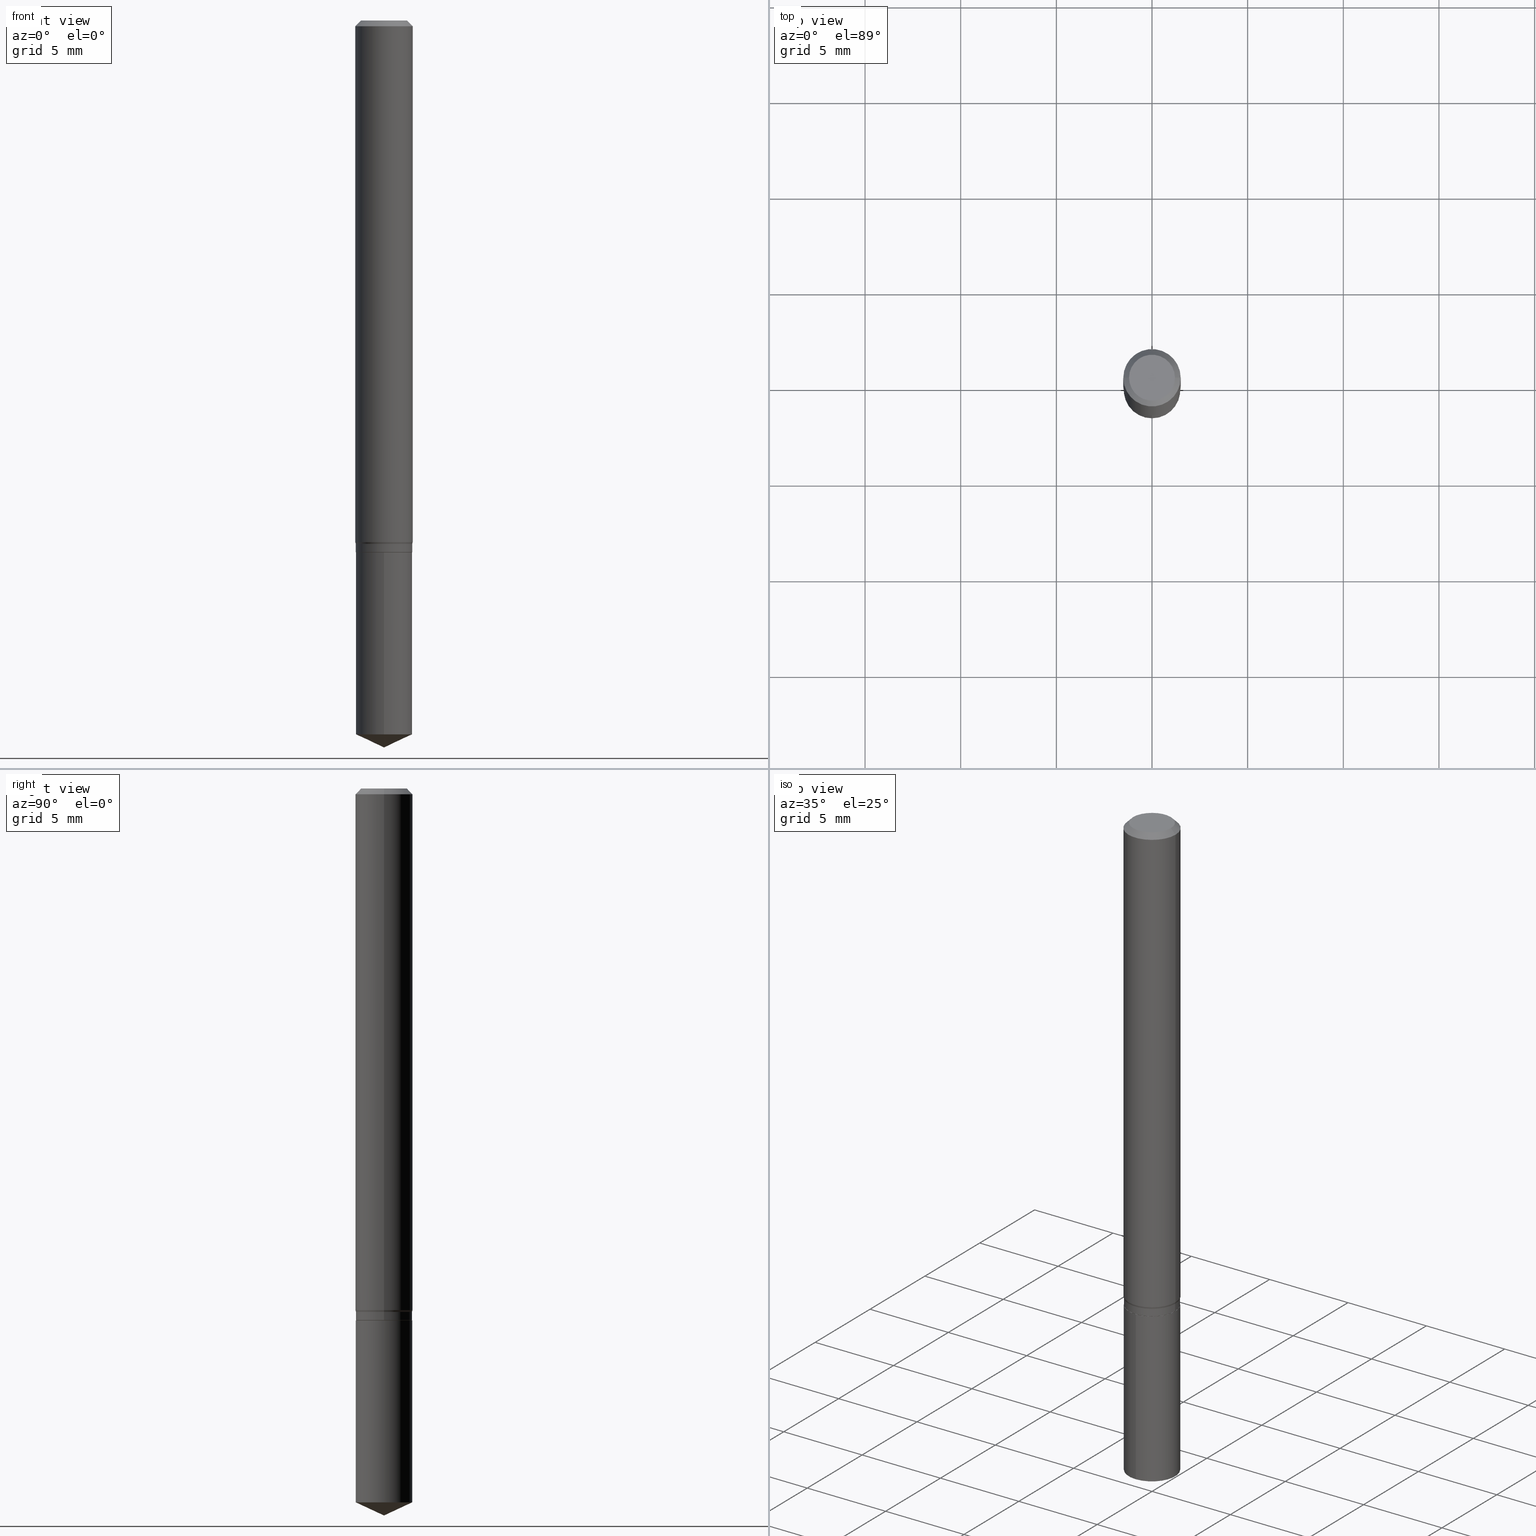
[diagram: canonical four-view strip — front | top / right | iso, engineering-drawing reading convention]
A machine part, canonical four-view strip (front | top / right | iso — engineering-drawing reading convention). The complete STEP part file that produces these views, byte-faithful:
ISO-10303-21;
HEADER;
FILE_DESCRIPTION (( 'STEP AP203' ),
    '1' );
FILE_NAME ('08224.STEP',
    '2024-04-24T13:50:58',
    ( '' ),
    ( '' ),
    'SwSTEP 2.0',
    'SolidWorks 2023',
    '' );
FILE_SCHEMA (( 'CONFIG_CONTROL_DESIGN' ));
ENDSEC;

DATA;
#1 = DIRECTION ( 'NONE',  ( -2.445468806185136597E-29, 3.491481338843145583E-15, 1.000000000000000000 ) ) ;
#2 = CIRCLE ( 'NONE', #252, 0.05754999999999999699 ) ;
#3 =( NAMED_UNIT ( * ) PLANE_ANGLE_UNIT ( ) SI_UNIT ( $, .RADIAN. ) );
#4 = DIRECTION ( 'NONE',  ( -6.982962677686265922E-15, -1.000000000000000000, 4.706025828879006993E-15 ) ) ;
#5 = FACE_OUTER_BOUND ( 'NONE', #255, .T. ) ;
#6 = LINE ( 'NONE', #420, #355 ) ;
#7 = CARTESIAN_POINT ( 'NONE',  ( 8.265746106709734507E-48, -1.180129479067563789E-33, -3.380025165646692144E-19 ) ) ;
#8 = ORIENTED_EDGE ( 'NONE', *, *, #27, .F. ) ;
#9 = CARTESIAN_POINT ( 'NONE',  ( -4.053609834396517801E-16, -0.05805000000000513222, -1.469030840444102592 ) ) ;
#10 = ADVANCED_BREP_SHAPE_REPRESENTATION ( '08224', ( #384, #238, #113 ), #149 ) ;
#11 = CARTESIAN_POINT ( 'NONE',  ( 2.676565608369631794E-29, -3.821426325363822773E-15, -1.094499999999999806 ) ) ;
#12 = AXIS2_PLACEMENT_3D ( 'NONE', #11, #317, #120 ) ;
#13 = CONICAL_SURFACE ( 'NONE', #366, 0.05805000000000000437, 0.2617993877991441898 ) ;
#14 = DIRECTION ( 'NONE',  ( -2.445468806185136877E-29, 3.491481338843145188E-15, 1.000000000000000000 ) ) ;
#15 = ORIENTED_EDGE ( 'NONE', *, *, #481, .T. ) ;
#16 = CARTESIAN_POINT ( 'NONE',  ( 0.05904999999999999832, -4.535783407291118600E-16, -0.01181000000000006350 ) ) ;
#17 = EDGE_CURVE ( 'NONE', #68, #265, #409, .T. ) ;
#18 = DIRECTION ( 'NONE',  ( 0.000000000000000000, 0.000000000000000000, 1.000000000000000000 ) ) ;
#19 = DIRECTION ( 'NONE',  ( -2.445468806185136597E-29, 3.491481338843145583E-15, 1.000000000000000000 ) ) ;
#20 = ORIENTED_EDGE ( 'NONE', *, *, #320, .T. ) ;
#21 = VECTOR ( 'NONE', #377, 39.37007874015748143 ) ;
#22 = ORIENTED_EDGE ( 'NONE', *, *, #134, .T. ) ;
#23 = AXIS2_PLACEMENT_3D ( 'NONE', #273, #452, #166 ) ;
#24 = CARTESIAN_POINT ( 'NONE',  ( -0.05805000000000000437, -3.348204491959213992E-15, -1.077099999999999946 ) ) ;
#25 = CC_DESIGN_APPROVAL ( #382, ( #447 ) ) ;
#26 = FACE_OUTER_BOUND ( 'NONE', #398, .T. ) ;
#27 = EDGE_CURVE ( 'NONE', #438, #192, #82, .T. ) ;
#28 = ORIENTED_EDGE ( 'NONE', *, *, #228, .T. ) ;
#29 = SHAPE_DEFINITION_REPRESENTATION ( #258, #10 ) ;
#30 = ORIENTED_EDGE ( 'NONE', *, *, #17, .T. ) ;
#31 = VERTEX_POINT ( 'NONE', #186 ) ;
#32 = EDGE_CURVE ( 'NONE', #363, #370, #137, .T. ) ;
#33 = DIRECTION ( 'NONE',  ( 1.000000000000000000, -6.982962677686262766E-15, 0.000000000000000000 ) ) ;
#34 = CIRCLE ( 'NONE', #345, 0.04724000000000000421 ) ;
#35 = EDGE_CURVE ( 'NONE', #438, #220, #157, .T. ) ;
#36 = CALENDAR_DATE ( 2024, 24, 4 ) ;
#37 = CYLINDRICAL_SURFACE ( 'NONE', #446, 0.05905000000000006771 ) ;
#38 = ORIENTED_EDGE ( 'NONE', *, *, #106, .F. ) ;
#39 = APPROVAL_DATE_TIME ( #376, #309 ) ;
#40 = DIRECTION ( 'NONE',  ( 1.000000000000000000, -6.982962677686266711E-15, 0.000000000000000000 ) ) ;
#41 = VECTOR ( 'NONE', #208, 39.37007874015748854 ) ;
#42 = CARTESIAN_POINT ( 'NONE',  ( -0.04724000000000000421, 3.504923541997677355E-16, -3.380025165670481712E-19 ) ) ;
#43 = ADVANCED_FACE ( 'NONE', ( #419 ), #344, .T. ) ;
#44 = DIRECTION ( 'NONE',  ( -2.445358326776455510E-29, 3.491639551644474585E-15, 1.000000000000000000 ) ) ;
#45 = ORIENTED_EDGE ( 'NONE', *, *, #262, .F. ) ;
#46 = AXIS2_PLACEMENT_3D ( 'NONE', #174, #180, #392 ) ;
#47 = ADVANCED_FACE ( 'NONE', ( #5 ), #198, .T. ) ;
#48 = CIRCLE ( 'NONE', #477, 0.05805000000000000437 ) ;
#49 = FACE_OUTER_BOUND ( 'NONE', #369, .T. ) ;
#50 = APPLICATION_PROTOCOL_DEFINITION ( 'international standard', 'config_control_design', 1994, #222 ) ;
#51 = DIRECTION ( 'NONE',  ( -2.445468806185136877E-29, 3.491481338843145188E-15, 1.000000000000000000 ) ) ;
#52 = CC_DESIGN_PERSON_AND_ORGANIZATION_ASSIGNMENT ( #322, #424, ( #194 ) ) ;
#53 = FACE_OUTER_BOUND ( 'NONE', #365, .T. ) ;
#54 = DIRECTION ( 'NONE',  ( 1.000000000000000000, -6.982962677686265133E-15, 0.000000000000000000 ) ) ;
#55 = DIRECTION ( 'NONE',  ( 2.445358326776454949E-29, -3.491639551644474585E-15, -1.000000000000000000 ) ) ;
#56 = CARTESIAN_POINT ( 'NONE',  ( 3.592427717684202887E-29, -5.129153021169098548E-15, -1.469030840444102815 ) ) ;
#57 = APPROVAL_ROLE ( '' ) ;
#58 = CLOSED_SHELL ( 'NONE', ( #218, #432, #484, #429, #47, #83, #451, #292, #43, #347, #474, #304 ) ) ;
#59 = CIRCLE ( 'NONE', #240, 0.05754999999999999699 ) ;
#60 = LINE ( 'NONE', #167, #267 ) ;
#61 = ORIENTED_EDGE ( 'NONE', *, *, #32, .F. ) ;
#62 = EDGE_CURVE ( 'NONE', #81, #68, #86, .T. ) ;
#63 = PERSON_AND_ORGANIZATION ( #125, #338 ) ;
#64 = DIRECTION ( 'NONE',  ( 6.982962677686265922E-15, 1.000000000000000000, -3.491639551644474585E-15 ) ) ;
#65 = ORIENTED_EDGE ( 'NONE', *, *, #417, .T. ) ;
#66 = EDGE_CURVE ( 'NONE', #455, #31, #223, .T. ) ;
#67 = DIRECTION ( 'NONE',  ( -2.445358326776455510E-29, 3.491639551644474585E-15, 1.000000000000000000 ) ) ;
#68 = VERTEX_POINT ( 'NONE', #351 ) ;
#69 = EDGE_LOOP ( 'NONE', ( #226, #15, #61, #433 ) ) ;
#70 = CC_DESIGN_APPROVAL ( #233, ( #194 ) ) ;
#71 = VERTEX_POINT ( 'NONE', #453 ) ;
#72 = DIRECTION ( 'NONE',  ( -2.445468806185136597E-29, 3.491481338843145583E-15, 1.000000000000000000 ) ) ;
#73 = EDGE_LOOP ( 'NONE', ( #151, #437, #294, #328 ) ) ;
#74 = CYLINDRICAL_SURFACE ( 'NONE', #469, 0.05905000000000006771 ) ;
#75 = SECURITY_CLASSIFICATION_LEVEL ( 'unclassified' ) ;
#76 = ORIENTED_EDGE ( 'NONE', *, *, #342, .T. ) ;
#77 = DIRECTION ( 'NONE',  ( -2.445468806185136597E-29, 3.491481338843145583E-15, 1.000000000000000000 ) ) ;
#78 = VERTEX_POINT ( 'NONE', #42 ) ;
#79 = VECTOR ( 'NONE', #340, 39.37007874015748143 ) ;
#80 = CC_DESIGN_APPROVAL ( #309, ( #160 ) ) ;
#81 = VERTEX_POINT ( 'NONE', #346 ) ;
#82 = LINE ( 'NONE', #374, #21 ) ;
#83 = ADVANCED_FACE ( 'NONE', ( #126 ), #276, .T. ) ;
#84 = VECTOR ( 'NONE', #319, 39.37007874015748854 ) ;
#85 = EDGE_CURVE ( 'NONE', #31, #455, #239, .T. ) ;
#86 = LINE ( 'NONE', #158, #251 ) ;
#87 = LENGTH_MEASURE_WITH_UNIT ( LENGTH_MEASURE( 0.02539999999999999897 ), #449 );
#88 = FACE_OUTER_BOUND ( 'NONE', #313, .T. ) ;
#89 = DIRECTION ( 'NONE',  ( 2.445468806185136597E-29, -3.491481338843145583E-15, -1.000000000000000000 ) ) ;
#90 =( CONVERSION_BASED_UNIT ( 'INCH', #87 ) LENGTH_UNIT ( ) NAMED_UNIT ( #401 ) );
#91 = ADVANCED_FACE ( 'NONE', ( #323 ), #353, .T. ) ;
#92 = AXIS2_PLACEMENT_3D ( 'NONE', #436, #72, #184 ) ;
#93 = CARTESIAN_POINT ( 'NONE',  ( 0.05754999999999999699, -4.223295827464667094E-15, -1.094499999999999806 ) ) ;
#94 = DATE_AND_TIME ( #357, #224 ) ;
#95 = FACE_OUTER_BOUND ( 'NONE', #221, .T. ) ;
#96 = APPROVAL_STATUS ( 'not_yet_approved' ) ;
#97 = CARTESIAN_POINT ( 'NONE',  ( 4.124700581087740328E-16, 0.05804999999999487653, -1.469030840444103037 ) ) ;
#98 = ORIENTED_EDGE ( 'NONE', *, *, #466, .F. ) ;
#99 = CONICAL_SURFACE ( 'NONE', #23, 84.42940631927567097, 1.134464013796322002 ) ;
#100 = CARTESIAN_POINT ( 'NONE',  ( 0.04724000000000000421, -3.852183633974369345E-16, -3.380025165621689721E-19 ) ) ;
#101 = DIRECTION ( 'NONE',  ( 1.000000000000000000, -6.982962677686265922E-15, 4.876176775795935793E-29 ) ) ;
#102 = FACE_OUTER_BOUND ( 'NONE', #69, .T. ) ;
#103 = EDGE_LOOP ( 'NONE', ( #98, #30, #289, #45 ) ) ;
#104 = ORIENTED_EDGE ( 'NONE', *, *, #417, .F. ) ;
#105 = CARTESIAN_POINT ( 'NONE',  ( 2.676565608369631794E-29, -3.821426325363822773E-15, -1.094499999999999806 ) ) ;
#106 = EDGE_CURVE ( 'NONE', #192, #455, #6, .T. ) ;
#107 = ORIENTED_EDGE ( 'NONE', *, *, #445, .F. ) ;
#108 = AXIS2_PLACEMENT_3D ( 'NONE', #354, #397, #140 ) ;
#109 = CARTESIAN_POINT ( 'NONE',  ( 0.05805000000000000437, -4.166035533507640200E-15, -1.077099999999999946 ) ) ;
#110 = FACE_OUTER_BOUND ( 'NONE', #471, .T. ) ;
#111 = DIRECTION ( 'NONE',  ( -2.445468806185136597E-29, 3.491481338843145583E-15, 1.000000000000000000 ) ) ;
#112 = DIRECTION ( 'NONE',  ( -2.445468806185136597E-29, 3.491481338843145583E-15, 1.000000000000000000 ) ) ;
#113 = AXIS2_PLACEMENT_3D ( 'NONE', #461, #18, #178 ) ;
#114 = EDGE_CURVE ( 'NONE', #182, #81, #209, .T. ) ;
#115 = EDGE_CURVE ( 'NONE', #183, #363, #358, .T. ) ;
#116 = DIRECTION ( 'NONE',  ( -6.982962677686265922E-15, -1.000000000000000000, 2.353012914439503496E-15 ) ) ;
#117 = LOCAL_TIME ( 9, 50, 58.00000000000000000, #130 ) ;
#118 = EDGE_CURVE ( 'NONE', #265, #71, #318, .T. ) ;
#119 = PLANE ( 'NONE',  #148 ) ;
#120 = DIRECTION ( 'NONE',  ( -6.982962677686265922E-15, -1.000000000000000000, 2.353012914439503496E-15 ) ) ;
#121 = ORIENTED_EDGE ( 'NONE', *, *, #134, .F. ) ;
#122 = DIRECTION ( 'NONE',  ( 1.000000000000000000, -6.982962677686266711E-15, 4.876185090822587894E-29 ) ) ;
#123 = CARTESIAN_POINT ( 'NONE',  ( -0.05904999999999999832, -1.474863793998382890E-15, -0.01181000000000006350 ) ) ;
#124 = DATE_AND_TIME ( #253, #117 ) ;
#125 = PERSON ( 'UNSPECIFIED', 'UNSPECIFIED', 'UNSPECIFIED', ('UNSPECIFIED'), ('UNSPECIFIED'), ('UNSPECIFIED') ) ;
#126 = FACE_OUTER_BOUND ( 'NONE', #73, .T. ) ;
#127 = AXIS2_PLACEMENT_3D ( 'NONE', #181, #67, #431 ) ;
#128 = ORIENTED_EDGE ( 'NONE', *, *, #481, .F. ) ;
#129 = CARTESIAN_POINT ( 'NONE',  ( 3.592427717684202887E-29, -5.129153021169098548E-15, -1.469030840444102815 ) ) ;
#130 = COORDINATED_UNIVERSAL_TIME_OFFSET ( 5, 0, .BEHIND. ) ;
#131 = PLANE ( 'NONE',  #246 ) ;
#132 = DIRECTION ( 'NONE',  ( -2.445468806185136597E-29, 3.491481338843145583E-15, 1.000000000000000000 ) ) ;
#133 = APPROVAL_DATE_TIME ( #94, #382 ) ;
#134 = EDGE_CURVE ( 'NONE', #217, #81, #60, .T. ) ;
#135 = ORIENTED_EDGE ( 'NONE', *, *, #320, .F. ) ;
#136 = PERSON_AND_ORGANIZATION_ROLE ( 'design_owner' ) ;
#137 = CIRCLE ( 'NONE', #159, 0.05904999999999999832 ) ;
#138 = VECTOR ( 'NONE', #295, 39.37007874015748143 ) ;
#139 = APPROVAL_PERSON_ORGANIZATION ( #458, #233, #391 ) ;
#140 = DIRECTION ( 'NONE',  ( 1.000000000000000000, -6.982962677686262766E-15, 0.000000000000000000 ) ) ;
#141 = ADVANCED_FACE ( 'NONE', ( #389 ), #131, .F. ) ;
#142 = ORIENTED_EDGE ( 'NONE', *, *, #260, .F. ) ;
#143 = LINE ( 'NONE', #24, #79 ) ;
#144 = APPLICATION_PROTOCOL_DEFINITION ( 'international standard', 'config_control_design', 1994, #333 ) ;
#145 = EDGE_LOOP ( 'NONE', ( #473, #250, #229, #28 ) ) ;
#146 = PERSON_AND_ORGANIZATION_ROLE ( 'classification_officer' ) ;
#147 = CLOSED_SHELL ( 'NONE', ( #179, #378, #441, #91, #141 ) ) ;
#148 = AXIS2_PLACEMENT_3D ( 'NONE', #215, #386, #360 ) ;
#149 =( GEOMETRIC_REPRESENTATION_CONTEXT ( 3 ) GLOBAL_UNCERTAINTY_ASSIGNED_CONTEXT ( ( #331 ) ) GLOBAL_UNIT_ASSIGNED_CONTEXT ( ( #90, #3, #162 ) ) REPRESENTATION_CONTEXT ( 'NONE', 'WORKASPACE' ) );
#150 = EDGE_CURVE ( 'NONE', #220, #31, #283, .T. ) ;
#151 = ORIENTED_EDGE ( 'NONE', *, *, #62, .F. ) ;
#152 = LINE ( 'NONE', #332, #138 ) ;
#153 = EDGE_CURVE ( 'NONE', #78, #183, #34, .T. ) ;
#154 = CARTESIAN_POINT ( 'NONE',  ( 0.05754999999999999699, -4.223295827464667094E-15, -1.094499999999999806 ) ) ;
#155 = VECTOR ( 'NONE', #410, 39.37007874015748143 ) ;
#156 = CONICAL_SURFACE ( 'NONE', #444, 84.42940631927567097, 1.134464013796322002 ) ;
#157 = LINE ( 'NONE', #303, #155 ) ;
#158 = CARTESIAN_POINT ( 'NONE',  ( -0.05805000000000001131, 4.124700581087382383E-16, -2.855441819892973512E-30 ) ) ;
#159 = AXIS2_PLACEMENT_3D ( 'NONE', #191, #111, #40 ) ;
#160 = SECURITY_CLASSIFICATION ( '', '', #75 ) ;
#161 = CARTESIAN_POINT ( 'NONE',  ( 2.676565608369631794E-29, -3.821426325363822773E-15, -1.094499999999999806 ) ) ;
#162 =( NAMED_UNIT ( * ) SI_UNIT ( $, .STERADIAN. ) SOLID_ANGLE_UNIT ( ) );
#163 = FACE_OUTER_BOUND ( 'NONE', #103, .T. ) ;
#164 = DIRECTION ( 'NONE',  ( -0.7071067811865353603, 7.493145998870309984E-15, 0.7071067811865595631 ) ) ;
#165 = DIRECTION ( 'NONE',  ( 1.000000000000000000, -6.982962677686266711E-15, 4.876185090822587894E-29 ) ) ;
#166 = DIRECTION ( 'NONE',  ( -6.982962677686267499E-15, -1.000000000000000000, 3.520397390770398255E-15 ) ) ;
#167 = CARTESIAN_POINT ( 'NONE',  ( -0.05754999999999999699, -3.412508980933885187E-15, -1.094499999999999806 ) ) ;
#168 = CARTESIAN_POINT ( 'NONE',  ( 2.675342873966538993E-29, -3.819680584694400481E-15, -1.093999999999999861 ) ) ;
#169 = AXIS2_PLACEMENT_3D ( 'NONE', #161, #44, #116 ) ;
#170 = CIRCLE ( 'NONE', #394, 0.05905000000000013016 ) ;
#171 = APPROVAL_PERSON_ORGANIZATION ( #372, #309, #190 ) ;
#172 = DIRECTION ( 'NONE',  ( -2.445468806185136597E-29, 3.491481338843145583E-15, 1.000000000000000000 ) ) ;
#173 = CC_DESIGN_PERSON_AND_ORGANIZATION_ASSIGNMENT ( #336, #299, ( #447 ) ) ;
#174 = CARTESIAN_POINT ( 'NONE',  ( 2.675342873966538993E-29, -3.819680584694400481E-15, -1.093999999999999861 ) ) ;
#175 = CARTESIAN_POINT ( 'NONE',  ( 4.124700581087648130E-16, 0.05804999999999617410, -1.094500000000000028 ) ) ;
#176 = ORIENTED_EDGE ( 'NONE', *, *, #150, .F. ) ;
#177 = LINE ( 'NONE', #245, #41 ) ;
#178 = DIRECTION ( 'NONE',  ( 1.000000000000000000, 0.000000000000000000, 0.000000000000000000 ) ) ;
#179 = ADVANCED_FACE ( 'NONE', ( #53 ), #459, .T. ) ;
#180 = DIRECTION ( 'NONE',  ( -2.445468806185136597E-29, 3.491481338843145583E-15, 1.000000000000000000 ) ) ;
#181 = CARTESIAN_POINT ( 'NONE',  ( 2.676565608369631794E-29, -3.821426325363822773E-15, -1.094499999999999806 ) ) ;
#182 = VERTEX_POINT ( 'NONE', #204 ) ;
#183 = VERTEX_POINT ( 'NONE', #100 ) ;
#184 = DIRECTION ( 'NONE',  ( 1.000000000000000000, -6.982962677686262766E-15, 0.000000000000000000 ) ) ;
#185 = ORIENTED_EDGE ( 'NONE', *, *, #66, .T. ) ;
#186 = CARTESIAN_POINT ( 'NONE',  ( 4.124700581087739835E-16, 0.05804999999999616023, -1.094500000000000028 ) ) ;
#187 = ORIENTED_EDGE ( 'NONE', *, *, #115, .T. ) ;
#188 = CALENDAR_DATE ( 2024, 24, 4 ) ;
#189 = CONICAL_SURFACE ( 'NONE', #92, 0.05754999999999999699, 0.7853981633974311816 ) ;
#190 = APPROVAL_ROLE ( '' ) ;
#191 = CARTESIAN_POINT ( 'NONE',  ( 2.888098660104662014E-31, -4.123439461173777182E-17, -0.01181000000000006350 ) ) ;
#192 = VERTEX_POINT ( 'NONE', #9 ) ;
#193 = DATE_AND_TIME ( #188, #415 ) ;
#194 = PRODUCT_DEFINITION ( 'UNKNOWN', '', #447, #307 ) ;
#195 = AXIS2_PLACEMENT_3D ( 'NONE', #488, #89, #305 ) ;
#196 = CC_DESIGN_SECURITY_CLASSIFICATION ( #160, ( #447 ) ) ;
#197 = ORIENTED_EDGE ( 'NONE', *, *, #118, .F. ) ;
#198 = CYLINDRICAL_SURFACE ( 'NONE', #286, 0.05805000000000001131 ) ;
#199 = EDGE_CURVE ( 'NONE', #220, #192, #302, .T. ) ;
#200 = CARTESIAN_POINT ( 'NONE',  ( -9.261532836068574158E-28, 1.322424553111868898E-13, 37.87397874015748300 ) ) ;
#201 = CIRCLE ( 'NONE', #264, 0.04724000000000000421 ) ;
#202 = CARTESIAN_POINT ( 'NONE',  ( -4.053609834396609506E-16, -0.05805000000000382077, -1.094499999999999806 ) ) ;
#203 = COORDINATED_UNIVERSAL_TIME_OFFSET ( 5, 0, .BEHIND. ) ;
#204 = CARTESIAN_POINT ( 'NONE',  ( 0.05805000000000001131, -4.225041568134088598E-15, -1.093999999999999861 ) ) ;
#205 = DIRECTION ( 'NONE',  ( 1.000000000000000000, -6.982962677686271444E-15, 0.000000000000000000 ) ) ;
#206 = MECHANICAL_CONTEXT ( 'NONE', #333, 'mechanical' ) ;
#207 = DIRECTION ( 'NONE',  ( -2.445358326776455510E-29, 3.491639551644474585E-15, 1.000000000000000000 ) ) ;
#208 = DIRECTION ( 'NONE',  ( -0.7071067811865454633, 2.468850131082235761E-15, -0.7071067811865493491 ) ) ;
#209 = CIRCLE ( 'NONE', #46, 0.05805000000000001131 ) ;
#210 = AXIS2_PLACEMENT_3D ( 'NONE', #56, #356, #4 ) ;
#211 = COORDINATED_UNIVERSAL_TIME_OFFSET ( 5, 0, .BEHIND. ) ;
#212 = AXIS2_PLACEMENT_3D ( 'NONE', #129, #207, #281 ) ;
#213 = LOCAL_TIME ( 9, 50, 58.00000000000000000, #405 ) ;
#214 = ORIENTED_EDGE ( 'NONE', *, *, #228, .F. ) ;
#215 = CARTESIAN_POINT ( 'NONE',  ( 4.132873053354867254E-48, -5.900647395337818946E-34, -1.690012582823346072E-19 ) ) ;
#216 = EDGE_CURVE ( 'NONE', #71, #363, #277, .T. ) ;
#217 = VERTEX_POINT ( 'NONE', #314 ) ;
#218 = ADVANCED_FACE ( 'NONE', ( #426 ), #456, .T. ) ;
#219 = CARTESIAN_POINT ( 'NONE',  ( 0.05905000000000006771, -4.123439461173745257E-16, 2.879382386107503723E-30 ) ) ;
#220 = VERTEX_POINT ( 'NONE', #97 ) ;
#221 = EDGE_LOOP ( 'NONE', ( #8, #330, #107 ) ) ;
#222 = APPLICATION_CONTEXT ( 'configuration controlled 3d designs of mechanical parts and assemblies' ) ;
#223 = CIRCLE ( 'NONE', #169, 0.05804999999999999744 ) ;
#224 = LOCAL_TIME ( 9, 50, 58.00000000000000000, #211 ) ;
#225 = CARTESIAN_POINT ( 'NONE',  ( -0.05905000000000013016, -3.328068678851369121E-15, -1.073367949192430615 ) ) ;
#226 = ORIENTED_EDGE ( 'NONE', *, *, #361, .T. ) ;
#227 = DIRECTION ( 'NONE',  ( 1.000000000000000000, -6.982962677686266711E-15, 4.876176775795936353E-29 ) ) ;
#228 = EDGE_CURVE ( 'NONE', #370, #363, #422, .T. ) ;
#229 = ORIENTED_EDGE ( 'NONE', *, *, #388, .T. ) ;
#230 = ORIENTED_EDGE ( 'NONE', *, *, #35, .F. ) ;
#231 = DIRECTION ( 'NONE',  ( -2.445468806185136597E-29, 3.491481338843145583E-15, 1.000000000000000000 ) ) ;
#232 = ORIENTED_EDGE ( 'NONE', *, *, #199, .F. ) ;
#233 = APPROVAL ( #326, 'UNSPECIFIED' ) ;
#234 = CARTESIAN_POINT ( 'NONE',  ( 0.000000000000000000, 0.000000000000000000, 0.000000000000000000 ) ) ;
#235 = DATE_TIME_ROLE ( 'classification_date' ) ;
#236 = DIRECTION ( 'NONE',  ( 1.000000000000000000, -6.982962677686271444E-15, 0.000000000000000000 ) ) ;
#237 = PERSON_AND_ORGANIZATION ( #125, #338 ) ;
#238 = MANIFOLD_SOLID_BREP ( 'Body-Move/Copy2[2]', #58 ) ;
#239 = CIRCLE ( 'NONE', #335, 0.05804999999999999744 ) ;
#240 = AXIS2_PLACEMENT_3D ( 'NONE', #396, #19, #287 ) ;
#241 = EDGE_CURVE ( 'NONE', #341, #217, #59, .T. ) ;
#242 = DIRECTION ( 'NONE',  ( -2.445468806185136597E-29, 3.491481338843145583E-15, 1.000000000000000000 ) ) ;
#243 = DIRECTION ( 'NONE',  ( -2.445358326776455510E-29, 3.491639551644474585E-15, 1.000000000000000000 ) ) ;
#244 = AXIS2_PLACEMENT_3D ( 'NONE', #486, #442, #236 ) ;
#245 = CARTESIAN_POINT ( 'NONE',  ( -0.05904999999999999832, 3.711095515056362547E-16, -0.01181000000000006350 ) ) ;
#246 = AXIS2_PLACEMENT_3D ( 'NONE', #467, #55, #64 ) ;
#247 = CARTESIAN_POINT ( 'NONE',  ( 8.265746106709734507E-48, -1.180129479067563789E-33, -3.380025165646692144E-19 ) ) ;
#248 = FACE_OUTER_BOUND ( 'NONE', #440, .T. ) ;
#249 = CARTESIAN_POINT ( 'NONE',  ( 2.888098660104662014E-31, -4.123439461173777182E-17, -0.01181000000000006350 ) ) ;
#250 = ORIENTED_EDGE ( 'NONE', *, *, #153, .F. ) ;
#251 = VECTOR ( 'NONE', #51, 39.37007874015748143 ) ;
#252 = AXIS2_PLACEMENT_3D ( 'NONE', #472, #231, #33 ) ;
#253 = CALENDAR_DATE ( 2024, 24, 4 ) ;
#254 = DIRECTION ( 'NONE',  ( 1.000000000000000000, -6.982962677686266711E-15, 0.000000000000000000 ) ) ;
#255 = EDGE_LOOP ( 'NONE', ( #487, #343, #482, #142 ) ) ;
#256 = CARTESIAN_POINT ( 'NONE',  ( 0.05805000000000001131, -4.053609834396879198E-16, 2.830620618349541465E-30 ) ) ;
#257 = EDGE_LOOP ( 'NONE', ( #128, #300, #421, #214 ) ) ;
#258 = PRODUCT_DEFINITION_SHAPE ( 'NONE', 'NONE',  #194 ) ;
#259 = ORIENTED_EDGE ( 'NONE', *, *, #388, .F. ) ;
#260 = EDGE_CURVE ( 'NONE', #182, #265, #435, .T. ) ;
#261 = PLANE ( 'NONE',  #274 ) ;
#262 = EDGE_CURVE ( 'NONE', #291, #71, #170, .T. ) ;
#263 = DIRECTION ( 'NONE',  ( 0.7071067811865454633, -7.319954787623246579E-15, -0.7071067811865493491 ) ) ;
#264 = AXIS2_PLACEMENT_3D ( 'NONE', #7, #308, #165 ) ;
#265 = VERTEX_POINT ( 'NONE', #109 ) ;
#266 = ORIENTED_EDGE ( 'NONE', *, *, #66, .F. ) ;
#267 = VECTOR ( 'NONE', #164, 39.37007874015748854 ) ;
#268 = APPROVAL_PERSON_ORGANIZATION ( #428, #382, #57 ) ;
#269 = DIRECTION ( 'NONE',  ( -2.445358326776455510E-29, 3.491639551644474585E-15, 1.000000000000000000 ) ) ;
#270 = DIRECTION ( 'NONE',  ( 1.000000000000000000, -6.982962677686267499E-15, 4.876176775795936353E-29 ) ) ;
#271 = EDGE_LOOP ( 'NONE', ( #176, #411, #339, #371 ) ) ;
#272 = CARTESIAN_POINT ( 'NONE',  ( 0.05805000000000000437, -4.166035533507640200E-15, -1.077099999999999946 ) ) ;
#273 = CARTESIAN_POINT ( 'NONE',  ( -9.261532836068574158E-28, 1.322424553111868898E-13, 37.87397874015748300 ) ) ;
#274 = AXIS2_PLACEMENT_3D ( 'NONE', #105, #480, #101 ) ;
#275 = PRODUCT_RELATED_PRODUCT_CATEGORY ( 'detail', '', ( #381 ) ) ;
#276 = CYLINDRICAL_SURFACE ( 'NONE', #454, 0.05805000000000001131 ) ;
#277 = LINE ( 'NONE', #219, #414 ) ;
#278 = DIRECTION ( 'NONE',  ( -1.000000000000000000, 6.982962677686266711E-15, 0.000000000000000000 ) ) ;
#279 = DATE_TIME_ROLE ( 'creation_date' ) ;
#280 = DIRECTION ( 'NONE',  ( -2.445358326776455790E-29, 3.491639551644474585E-15, 1.000000000000000000 ) ) ;
#281 = DIRECTION ( 'NONE',  ( -6.982962677686265922E-15, -1.000000000000000000, 4.706025828879006993E-15 ) ) ;
#282 = PERSON_AND_ORGANIZATION_ROLE ( 'creator' ) ;
#283 = LINE ( 'NONE', #175, #337 ) ;
#284 = ORIENTED_EDGE ( 'NONE', *, *, #241, .F. ) ;
#285 = FACE_OUTER_BOUND ( 'NONE', #402, .T. ) ;
#286 = AXIS2_PLACEMENT_3D ( 'NONE', #416, #1, #270 ) ;
#287 = DIRECTION ( 'NONE',  ( 1.000000000000000000, -6.982962677686262766E-15, 0.000000000000000000 ) ) ;
#288 = ORIENTED_EDGE ( 'NONE', *, *, #114, .F. ) ;
#289 = ORIENTED_EDGE ( 'NONE', *, *, #118, .T. ) ;
#290 = CARTESIAN_POINT ( 'NONE',  ( 0.000000000000000000, 0.000000000000000000, 0.000000000000000000 ) ) ;
#291 = VERTEX_POINT ( 'NONE', #225 ) ;
#292 = ADVANCED_FACE ( 'NONE', ( #407 ), #37, .T. ) ;
#293 = DIRECTION ( 'NONE',  ( 1.000000000000000000, -6.982962677686266711E-15, 4.876176775795936353E-29 ) ) ;
#294 = ORIENTED_EDGE ( 'NONE', *, *, #260, .T. ) ;
#295 = DIRECTION ( 'NONE',  ( -2.445468806185136877E-29, 3.491481338843145188E-15, 1.000000000000000000 ) ) ;
#296 = AXIS2_PLACEMENT_3D ( 'NONE', #249, #362, #254 ) ;
#297 = DIRECTION ( 'NONE',  ( -2.445468806185136597E-29, 3.491481338843145583E-15, 1.000000000000000000 ) ) ;
#298 = EDGE_LOOP ( 'NONE', ( #185, #408 ) ) ;
#299 = PERSON_AND_ORGANIZATION_ROLE ( 'design_supplier' ) ;
#300 = ORIENTED_EDGE ( 'NONE', *, *, #262, .T. ) ;
#301 = CC_DESIGN_PERSON_AND_ORGANIZATION_ASSIGNMENT ( #237, #146, ( #160 ) ) ;
#302 = CIRCLE ( 'NONE', #212, 0.05804999999999999744 ) ;
#303 = CARTESIAN_POINT ( 'NONE',  ( 3.658744552762151624E-29, -5.223495605393188568E-15, -1.496099999999999985 ) ) ;
#304 = ADVANCED_FACE ( 'NONE', ( #26 ), #189, .T. ) ;
#305 = DIRECTION ( 'NONE',  ( -1.000000000000000000, 6.982962677686266711E-15, 0.000000000000000000 ) ) ;
#306 = CIRCLE ( 'NONE', #413, 0.05905000000000013016 ) ;
#307 = DESIGN_CONTEXT ( 'detailed design', #222, 'design' ) ;
#308 = DIRECTION ( 'NONE',  ( -2.445468806185136597E-29, 3.491481338843145583E-15, 1.000000000000000000 ) ) ;
#309 = APPROVAL ( #367, 'UNSPECIFIED' ) ;
#310 = CARTESIAN_POINT ( 'NONE',  ( 2.624887837309001649E-29, -3.747644164317709009E-15, -1.073367949192430615 ) ) ;
#311 = DIRECTION ( 'NONE',  ( -2.445468806185136597E-29, 3.491481338843145583E-15, 1.000000000000000000 ) ) ;
#312 = APPROVAL_DATE_TIME ( #470, #233 ) ;
#313 = EDGE_LOOP ( 'NONE', ( #230, #463, #232 ) ) ;
#314 = CARTESIAN_POINT ( 'NONE',  ( -0.05754999999999999699, -3.409859753759773986E-15, -1.094499999999999806 ) ) ;
#315 = CARTESIAN_POINT ( 'NONE',  ( 2.634014451142010375E-29, -3.760674550067952083E-15, -1.077099999999999946 ) ) ;
#316 = CIRCLE ( 'NONE', #325, 0.05805000000000001131 ) ;
#317 = DIRECTION ( 'NONE',  ( -2.445358326776455510E-29, 3.491639551644474585E-15, 1.000000000000000000 ) ) ;
#318 = LINE ( 'NONE', #272, #476 ) ;
#319 = DIRECTION ( 'NONE',  ( 0.7071067811865353603, -2.468850131082130054E-15, 0.7071067811865595631 ) ) ;
#320 = EDGE_CURVE ( 'NONE', #217, #341, #2, .T. ) ;
#321 = CARTESIAN_POINT ( 'NONE',  ( 0.05904999999999999832, -4.463468013801466955E-16, -0.01181000000000006350 ) ) ;
#322 = PERSON_AND_ORGANIZATION ( #125, #338 ) ;
#323 = FACE_OUTER_BOUND ( 'NONE', #271, .T. ) ;
#324 = ORIENTED_EDGE ( 'NONE', *, *, #490, .T. ) ;
#325 = AXIS2_PLACEMENT_3D ( 'NONE', #168, #311, #460 ) ;
#326 = APPROVAL_STATUS ( 'not_yet_approved' ) ;
#327 = DIRECTION ( 'NONE',  ( 1.000000000000000000, -6.982962677686265133E-15, 0.000000000000000000 ) ) ;
#328 = ORIENTED_EDGE ( 'NONE', *, *, #17, .F. ) ;
#329 = ORIENTED_EDGE ( 'NONE', *, *, #490, .F. ) ;
#330 = ORIENTED_EDGE ( 'NONE', *, *, #35, .T. ) ;
#331 = UNCERTAINTY_MEASURE_WITH_UNIT (LENGTH_MEASURE( 1.000000000000000082E-05 ), #90, 'distance_accuracy_value', 'NONE');
#332 = CARTESIAN_POINT ( 'NONE',  ( -0.05905000000000006771, 4.195754854663396409E-16, -2.904631170795525045E-30 ) ) ;
#333 = APPLICATION_CONTEXT ( 'configuration controlled 3d designs of mechanical parts and assemblies' ) ;
#334 = ORIENTED_EDGE ( 'NONE', *, *, #150, .T. ) ;
#335 = AXIS2_PLACEMENT_3D ( 'NONE', #425, #243, #348 ) ;
#336 = PERSON_AND_ORGANIZATION ( #125, #338 ) ;
#337 = VECTOR ( 'NONE', #462, 39.37007874015748143 ) ;
#338 = ORGANIZATION ( 'UNSPECIFIED', 'UNSPECIFIED', '' ) ;
#339 = ORIENTED_EDGE ( 'NONE', *, *, #106, .T. ) ;
#340 = DIRECTION ( 'NONE',  ( -0.2588190451025156880, 5.211531920934515543E-15, 0.9659258262890696445 ) ) ;
#341 = VERTEX_POINT ( 'NONE', #154 ) ;
#342 = EDGE_CURVE ( 'NONE', #265, #68, #48, .T. ) ;
#343 = ORIENTED_EDGE ( 'NONE', *, *, #62, .T. ) ;
#344 = CONICAL_SURFACE ( 'NONE', #195, 0.05904999999999999832, 0.7853981633974456145 ) ;
#345 = AXIS2_PLACEMENT_3D ( 'NONE', #247, #385, #122 ) ;
#346 = CARTESIAN_POINT ( 'NONE',  ( -0.05805000000000001131, -3.377707509272438191E-15, -1.093999999999999861 ) ) ;
#347 = ADVANCED_FACE ( 'NONE', ( #49 ), #119, .F. ) ;
#348 = DIRECTION ( 'NONE',  ( -6.982962677686265922E-15, -1.000000000000000000, 2.353012914439503496E-15 ) ) ;
#349 = CARTESIAN_POINT ( 'NONE',  ( 2.624887837309001649E-29, -3.747644164317709009E-15, -1.073367949192430615 ) ) ;
#350 = CALENDAR_DATE ( 2024, 24, 4 ) ;
#351 = CARTESIAN_POINT ( 'NONE',  ( -0.05805000000000000437, -3.377707509272438191E-15, -1.077099999999999946 ) ) ;
#352 = ORIENTED_EDGE ( 'NONE', *, *, #241, .T. ) ;
#353 = CYLINDRICAL_SURFACE ( 'NONE', #12, 0.05804999999999999744 ) ;
#354 = CARTESIAN_POINT ( 'NONE',  ( 2.676565608369631794E-29, -3.821426325363822773E-15, -1.094499999999999806 ) ) ;
#355 = VECTOR ( 'NONE', #280, 39.37007874015748143 ) ;
#356 = DIRECTION ( 'NONE',  ( -2.445358326776455510E-29, 3.491639551644474585E-15, 1.000000000000000000 ) ) ;
#357 = CALENDAR_DATE ( 2024, 24, 4 ) ;
#358 = LINE ( 'NONE', #321, #412 ) ;
#359 = EDGE_LOOP ( 'NONE', ( #352, #22, #288, #104 ) ) ;
#360 = DIRECTION ( 'NONE',  ( -1.000000000000000000, 6.982962677686265922E-15, -4.876176775795935793E-29 ) ) ;
#361 = EDGE_CURVE ( 'NONE', #71, #291, #306, .T. ) ;
#362 = DIRECTION ( 'NONE',  ( -2.445468806185136597E-29, 3.491481338843145583E-15, 1.000000000000000000 ) ) ;
#363 = VERTEX_POINT ( 'NONE', #16 ) ;
#364 = DIRECTION ( 'NONE',  ( -2.445468806185136877E-29, 3.491481338843145188E-15, 1.000000000000000000 ) ) ;
#365 = EDGE_LOOP ( 'NONE', ( #406, #334, #266, #38 ) ) ;
#366 = AXIS2_PLACEMENT_3D ( 'NONE', #315, #132, #205 ) ;
#367 = APPROVAL_STATUS ( 'not_yet_approved' ) ;
#368 = CC_DESIGN_DATE_AND_TIME_ASSIGNMENT ( #124, #279, ( #194 ) ) ;
#369 = EDGE_LOOP ( 'NONE', ( #399, #324 ) ) ;
#370 = VERTEX_POINT ( 'NONE', #123 ) ;
#371 = ORIENTED_EDGE ( 'NONE', *, *, #85, .F. ) ;
#372 = PERSON_AND_ORGANIZATION ( #125, #338 ) ;
#373 = CONICAL_SURFACE ( 'NONE', #434, 0.05805000000000000437, 0.2617993877991441898 ) ;
#374 = CARTESIAN_POINT ( 'NONE',  ( 3.658500592690254185E-29, -5.223841933215297403E-15, -1.496099999999999985 ) ) ;
#375 = CC_DESIGN_PERSON_AND_ORGANIZATION_ASSIGNMENT ( #387, #282, ( #447 ) ) ;
#376 = DATE_AND_TIME ( #36, #213 ) ;
#377 = DIRECTION ( 'NONE',  ( -6.328713451373392256E-15, -0.9063077870366517130, 0.4226182617406955555 ) ) ;
#378 = ADVANCED_FACE ( 'NONE', ( #95 ), #99, .T. ) ;
#379 = CARTESIAN_POINT ( 'NONE',  ( 0.000000000000000000, 0.000000000000000000, 0.000000000000000000 ) ) ;
#380 = CONICAL_SURFACE ( 'NONE', #439, 0.05904999999999999832, 0.7853981633974456145 ) ;
#381 = PRODUCT ( '08224', '08224', '', ( #206 ) ) ;
#382 = APPROVAL ( #96, 'UNSPECIFIED' ) ;
#383 = DIRECTION ( 'NONE',  ( 1.000000000000000000, -6.982962677686271444E-15, 0.000000000000000000 ) ) ;
#384 = MANIFOLD_SOLID_BREP ( 'Body-Move/Copy2[1]', #147 ) ;
#385 = DIRECTION ( 'NONE',  ( -2.445468806185136597E-29, 3.491481338843145583E-15, 1.000000000000000000 ) ) ;
#386 = DIRECTION ( 'NONE',  ( 2.438088387897960049E-29, -3.491481338843145188E-15, -1.000000000000000000 ) ) ;
#387 = PERSON_AND_ORGANIZATION ( #125, #338 ) ;
#388 = EDGE_CURVE ( 'NONE', #78, #370, #177, .T. ) ;
#389 = FACE_OUTER_BOUND ( 'NONE', #298, .T. ) ;
#390 = DIRECTION ( 'NONE',  ( -6.982962677686267499E-15, -1.000000000000000000, 3.520397390770398255E-15 ) ) ;
#391 = APPROVAL_ROLE ( '' ) ;
#392 = DIRECTION ( 'NONE',  ( 1.000000000000000000, -6.982962677686270655E-15, 0.000000000000000000 ) ) ;
#393 = ORIENTED_EDGE ( 'NONE', *, *, #361, .F. ) ;
#394 = AXIS2_PLACEMENT_3D ( 'NONE', #310, #297, #327 ) ;
#395 = DIRECTION ( 'NONE',  ( 1.000000000000000000, -6.982962677686271444E-15, 0.000000000000000000 ) ) ;
#396 = CARTESIAN_POINT ( 'NONE',  ( 2.676565608369631794E-29, -3.821426325363822773E-15, -1.094499999999999806 ) ) ;
#397 = DIRECTION ( 'NONE',  ( -2.445468806185136597E-29, 3.491481338843145583E-15, 1.000000000000000000 ) ) ;
#398 = EDGE_LOOP ( 'NONE', ( #121, #20, #65, #489 ) ) ;
#399 = ORIENTED_EDGE ( 'NONE', *, *, #153, .T. ) ;
#400 = EDGE_CURVE ( 'NONE', #81, #182, #316, .T. ) ;
#401 = DIMENSIONAL_EXPONENTS ( 1.000000000000000000, 0.000000000000000000, 0.000000000000000000, 0.000000000000000000, 0.000000000000000000, 0.000000000000000000, 0.000000000000000000 ) ;
#402 = EDGE_LOOP ( 'NONE', ( #329, #187, #475, #259 ) ) ;
#403 = DIRECTION ( 'NONE',  ( -2.445468806185136597E-29, 3.491481338843145583E-15, 1.000000000000000000 ) ) ;
#404 = VECTOR ( 'NONE', #364, 39.37007874015748143 ) ;
#405 = COORDINATED_UNIVERSAL_TIME_OFFSET ( 5, 0, .BEHIND. ) ;
#406 = ORIENTED_EDGE ( 'NONE', *, *, #445, .T. ) ;
#407 = FACE_OUTER_BOUND ( 'NONE', #257, .T. ) ;
#408 = ORIENTED_EDGE ( 'NONE', *, *, #85, .T. ) ;
#409 = CIRCLE ( 'NONE', #244, 0.05805000000000000437 ) ;
#410 = DIRECTION ( 'NONE',  ( 6.439704144417047708E-15, 0.9063077870366545996, 0.4226182617406892827 ) ) ;
#411 = ORIENTED_EDGE ( 'NONE', *, *, #199, .T. ) ;
#412 = VECTOR ( 'NONE', #263, 39.37007874015748854 ) ;
#413 = AXIS2_PLACEMENT_3D ( 'NONE', #349, #172, #54 ) ;
#414 = VECTOR ( 'NONE', #14, 39.37007874015748143 ) ;
#415 = LOCAL_TIME ( 9, 50, 58.00000000000000000, #483 ) ;
#416 = CARTESIAN_POINT ( 'NONE',  ( 0.000000000000000000, 0.000000000000000000, 0.000000000000000000 ) ) ;
#417 = EDGE_CURVE ( 'NONE', #341, #182, #464, .T. ) ;
#418 = DIRECTION ( 'NONE',  ( -2.445468806185136597E-29, 3.491481338843145583E-15, 1.000000000000000000 ) ) ;
#419 = FACE_OUTER_BOUND ( 'NONE', #145, .T. ) ;
#420 = CARTESIAN_POINT ( 'NONE',  ( -4.053609834396609506E-16, -0.05805000000000382077, -1.094499999999999806 ) ) ;
#421 = ORIENTED_EDGE ( 'NONE', *, *, #216, .T. ) ;
#422 = CIRCLE ( 'NONE', #296, 0.05904999999999999832 ) ;
#423 = DIRECTION ( 'NONE',  ( 0.2588190451025156880, 1.565188264969667130E-15, 0.9659258262890696445 ) ) ;
#424 = PERSON_AND_ORGANIZATION_ROLE ( 'creator' ) ;
#425 = CARTESIAN_POINT ( 'NONE',  ( 2.676565608369631794E-29, -3.821426325363822773E-15, -1.094499999999999806 ) ) ;
#426 = FACE_OUTER_BOUND ( 'NONE', #359, .T. ) ;
#427 = CARTESIAN_POINT ( 'NONE',  ( 3.658500592690254185E-29, -5.223841933215297403E-15, -1.496099999999999985 ) ) ;
#428 = PERSON_AND_ORGANIZATION ( #125, #338 ) ;
#429 = ADVANCED_FACE ( 'NONE', ( #248 ), #13, .T. ) ;
#430 = DIRECTION ( 'NONE',  ( 2.445468806185136597E-29, -3.491481338843145583E-15, -1.000000000000000000 ) ) ;
#431 = DIRECTION ( 'NONE',  ( -6.982962677686265922E-15, -1.000000000000000000, 2.353012914439503496E-15 ) ) ;
#432 = ADVANCED_FACE ( 'NONE', ( #285 ), #380, .T. ) ;
#433 = ORIENTED_EDGE ( 'NONE', *, *, #216, .F. ) ;
#434 = AXIS2_PLACEMENT_3D ( 'NONE', #450, #418, #383 ) ;
#435 = LINE ( 'NONE', #256, #404 ) ;
#436 = CARTESIAN_POINT ( 'NONE',  ( 2.676565608369631794E-29, -3.821426325363822773E-15, -1.094499999999999806 ) ) ;
#437 = ORIENTED_EDGE ( 'NONE', *, *, #400, .T. ) ;
#438 = VERTEX_POINT ( 'NONE', #427 ) ;
#439 = AXIS2_PLACEMENT_3D ( 'NONE', #457, #430, #278 ) ;
#440 = EDGE_LOOP ( 'NONE', ( #76, #468, #393, #197 ) ) ;
#441 = ADVANCED_FACE ( 'NONE', ( #88 ), #156, .T. ) ;
#442 = DIRECTION ( 'NONE',  ( -2.445468806185136597E-29, 3.491481338843145583E-15, 1.000000000000000000 ) ) ;
#443 = CARTESIAN_POINT ( 'NONE',  ( 2.634014451142010375E-29, -3.760674550067952083E-15, -1.077099999999999946 ) ) ;
#444 = AXIS2_PLACEMENT_3D ( 'NONE', #200, #269, #390 ) ;
#445 = EDGE_CURVE ( 'NONE', #192, #220, #485, .T. ) ;
#446 = AXIS2_PLACEMENT_3D ( 'NONE', #290, #77, #293 ) ;
#447 = PRODUCT_DEFINITION_FORMATION_WITH_SPECIFIED_SOURCE ( 'ANY', '', #381, .NOT_KNOWN. ) ;
#448 = CC_DESIGN_PERSON_AND_ORGANIZATION_ASSIGNMENT ( #63, #136, ( #381 ) ) ;
#449 =( LENGTH_UNIT ( ) NAMED_UNIT ( * ) SI_UNIT ( $, .METRE. ) );
#450 = CARTESIAN_POINT ( 'NONE',  ( 2.634014451142010375E-29, -3.760674550067952083E-15, -1.077099999999999946 ) ) ;
#451 = ADVANCED_FACE ( 'NONE', ( #163 ), #373, .T. ) ;
#452 = DIRECTION ( 'NONE',  ( -2.445358326776455510E-29, 3.491639551644474585E-15, 1.000000000000000000 ) ) ;
#453 = CARTESIAN_POINT ( 'NONE',  ( 0.05905000000000013016, -4.159988110435083929E-15, -1.073367949192430615 ) ) ;
#454 = AXIS2_PLACEMENT_3D ( 'NONE', #379, #242, #465 ) ;
#455 = VERTEX_POINT ( 'NONE', #202 ) ;
#456 = CONICAL_SURFACE ( 'NONE', #108, 0.05754999999999999699, 0.7853981633974311816 ) ;
#457 = CARTESIAN_POINT ( 'NONE',  ( 2.888098660104662014E-31, -4.123439461173777182E-17, -0.01181000000000006350 ) ) ;
#458 = PERSON_AND_ORGANIZATION ( #125, #338 ) ;
#459 = CYLINDRICAL_SURFACE ( 'NONE', #127, 0.05804999999999999744 ) ;
#460 = DIRECTION ( 'NONE',  ( 1.000000000000000000, -6.982962677686270655E-15, 0.000000000000000000 ) ) ;
#461 = CARTESIAN_POINT ( 'NONE',  ( 0.000000000000000000, 0.000000000000000000, 0.000000000000000000 ) ) ;
#462 = DIRECTION ( 'NONE',  ( -2.445358326776455790E-29, 3.491639551644474585E-15, 1.000000000000000000 ) ) ;
#463 = ORIENTED_EDGE ( 'NONE', *, *, #27, .T. ) ;
#464 = LINE ( 'NONE', #93, #84 ) ;
#465 = DIRECTION ( 'NONE',  ( 1.000000000000000000, -6.982962677686267499E-15, 4.876176775795936353E-29 ) ) ;
#466 = EDGE_CURVE ( 'NONE', #68, #291, #143, .T. ) ;
#467 = CARTESIAN_POINT ( 'NONE',  ( 2.676565608369631794E-29, -3.821426325363822773E-15, -1.094499999999999806 ) ) ;
#468 = ORIENTED_EDGE ( 'NONE', *, *, #466, .T. ) ;
#469 = AXIS2_PLACEMENT_3D ( 'NONE', #234, #403, #227 ) ;
#470 = DATE_AND_TIME ( #350, #479 ) ;
#471 = EDGE_LOOP ( 'NONE', ( #284, #135 ) ) ;
#472 = CARTESIAN_POINT ( 'NONE',  ( 2.676565608369631794E-29, -3.821426325363822773E-15, -1.094499999999999806 ) ) ;
#473 = ORIENTED_EDGE ( 'NONE', *, *, #115, .F. ) ;
#474 = ADVANCED_FACE ( 'NONE', ( #110 ), #261, .F. ) ;
#475 = ORIENTED_EDGE ( 'NONE', *, *, #32, .T. ) ;
#476 = VECTOR ( 'NONE', #423, 39.37007874015748143 ) ;
#477 = AXIS2_PLACEMENT_3D ( 'NONE', #443, #112, #395 ) ;
#478 = CC_DESIGN_DATE_AND_TIME_ASSIGNMENT ( #193, #235, ( #160 ) ) ;
#479 = LOCAL_TIME ( 9, 50, 58.00000000000000000, #203 ) ;
#480 = DIRECTION ( 'NONE',  ( -2.438088387897960049E-29, 3.491481338843145188E-15, 1.000000000000000000 ) ) ;
#481 = EDGE_CURVE ( 'NONE', #291, #370, #152, .T. ) ;
#482 = ORIENTED_EDGE ( 'NONE', *, *, #342, .F. ) ;
#483 = COORDINATED_UNIVERSAL_TIME_OFFSET ( 5, 0, .BEHIND. ) ;
#484 = ADVANCED_FACE ( 'NONE', ( #102 ), #74, .T. ) ;
#485 = CIRCLE ( 'NONE', #210, 0.05804999999999999744 ) ;
#486 = CARTESIAN_POINT ( 'NONE',  ( 2.634014451142010375E-29, -3.760674550067952083E-15, -1.077099999999999946 ) ) ;
#487 = ORIENTED_EDGE ( 'NONE', *, *, #114, .T. ) ;
#488 = CARTESIAN_POINT ( 'NONE',  ( 2.888098660104662014E-31, -4.123439461173777182E-17, -0.01181000000000006350 ) ) ;
#489 = ORIENTED_EDGE ( 'NONE', *, *, #400, .F. ) ;
#490 = EDGE_CURVE ( 'NONE', #183, #78, #201, .T. ) ;
ENDSEC;
END-ISO-10303-21;
